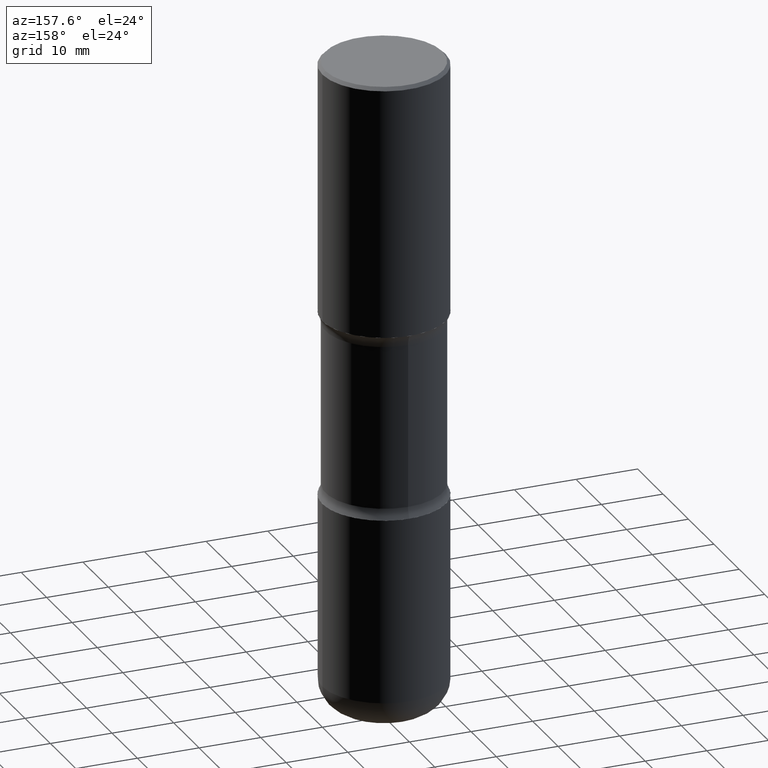
[diagram: clean part render]
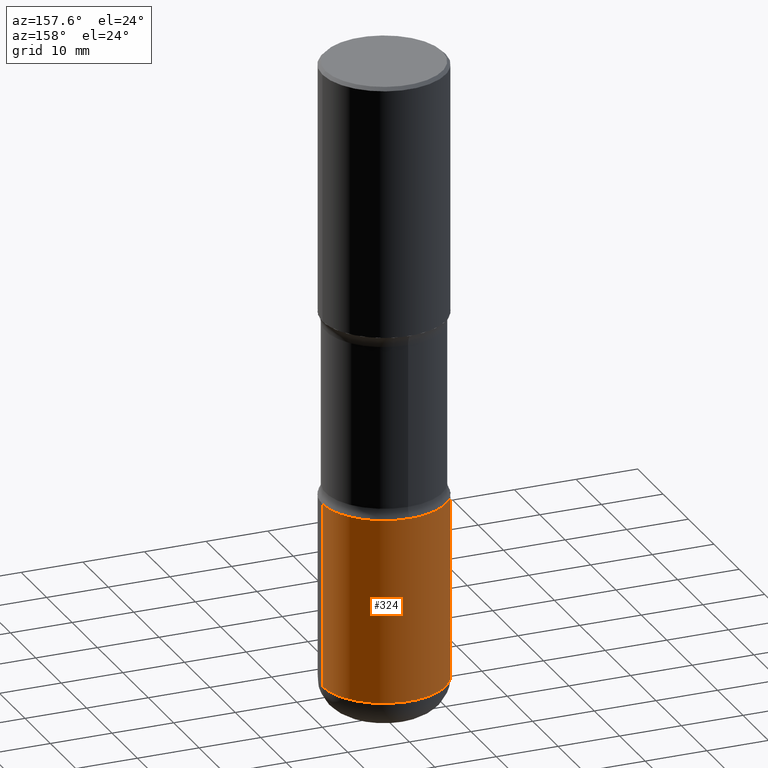
[diagram: same view with one face highlighted and labeled with its STEP entity id]
A machine part, auxiliary view. The second image highlights one B-rep face of the part: STEP entity #324.
In plain terms, the highlighted cylindrical surface (partial cylindrical patch) has radius 10 mm, axis along (-0, 0, 1).
Its self-contained STEP definition (entity closure, byte-faithful):
#20 = EDGE_CURVE ( 'NONE', #401, #432, #361, .T. ) ;
#41 = CARTESIAN_POINT ( 'NONE',  ( 0.3937000000000004385, -2.749192406205086372E-15, 1.919750796630862133E-29 ) ) ;
#53 = DIRECTION ( 'NONE',  ( 1.000000000000000000, -6.982962677686266711E-15, 4.876176775795935793E-29 ) ) ;
#56 = AXIS2_PLACEMENT_3D ( 'NONE', #553, #332, #369 ) ;
#61 = CARTESIAN_POINT ( 'NONE',  ( 9.723917614033958359E-29, -1.388317724764199912E-14, -3.976299999999999724 ) ) ;
#83 = EDGE_CURVE ( 'NONE', #531, #432, #504, .T. ) ;
#92 = CIRCLE ( 'NONE', #173, 0.3937000000000006605 ) ;
#99 = FACE_OUTER_BOUND ( 'NONE', #156, .T. ) ;
#100 = ORIENTED_EDGE ( 'NONE', *, *, #370, .T. ) ;
#140 = LINE ( 'NONE', #41, #222 ) ;
#156 = EDGE_LOOP ( 'NONE', ( #100, #442, #420, #329 ) ) ;
#160 = CARTESIAN_POINT ( 'NONE',  ( 0.3937000000000007160, -1.663236965384708707E-14, -3.976299999999999724 ) ) ;
#173 = AXIS2_PLACEMENT_3D ( 'NONE', #61, #235, #395 ) ;
#188 = EDGE_CURVE ( 'NONE', #497, #401, #140, .T. ) ;
#203 = CARTESIAN_POINT ( 'NONE',  ( -0.3937000000000007160, -1.108577049695447881E-14, -3.976299999999999724 ) ) ;
#204 = DIRECTION ( 'NONE',  ( -2.445468806185136877E-29, 3.491481338843145188E-15, 1.000000000000000000 ) ) ;
#212 = CARTESIAN_POINT ( 'NONE',  ( -0.3937000000000002164, -9.023876192300660874E-15, -2.795200000000000351 ) ) ;
#222 = VECTOR ( 'NONE', #343, 39.37007874015748143 ) ;
#235 = DIRECTION ( 'NONE',  ( -2.445468806185136597E-29, 3.491481338843145583E-15, 1.000000000000000000 ) ) ;
#253 = CARTESIAN_POINT ( 'NONE',  ( -0.3937000000000004385, 2.797406750687517547E-15, -1.936584745033358417E-29 ) ) ;
#255 = VECTOR ( 'NONE', #204, 39.37007874015748143 ) ;
#269 = DIRECTION ( 'NONE',  ( -2.445468806185136597E-29, 3.491481338843145583E-15, 1.000000000000000000 ) ) ;
#272 = CARTESIAN_POINT ( 'NONE',  ( 0.000000000000000000, 0.000000000000000000, 0.000000000000000000 ) ) ;
#324 = ADVANCED_FACE ( 'NONE', ( #99 ), #400, .T. ) ;
#329 = ORIENTED_EDGE ( 'NONE', *, *, #188, .F. ) ;
#332 = DIRECTION ( 'NONE',  ( -2.445468806185136597E-29, 3.491481338843145583E-15, 1.000000000000000000 ) ) ;
#336 = AXIS2_PLACEMENT_3D ( 'NONE', #272, #269, #53 ) ;
#343 = DIRECTION ( 'NONE',  ( -2.445468806185136877E-29, 3.491481338843145188E-15, 1.000000000000000000 ) ) ;
#361 = CIRCLE ( 'NONE', #56, 0.3937000000000002164 ) ;
#369 = DIRECTION ( 'NONE',  ( 1.000000000000000000, -6.982962677686269866E-15, 0.000000000000000000 ) ) ;
#370 = EDGE_CURVE ( 'NONE', #497, #531, #92, .T. ) ;
#395 = DIRECTION ( 'NONE',  ( 1.000000000000000000, -6.982962677686266711E-15, 0.000000000000000000 ) ) ;
#396 = CARTESIAN_POINT ( 'NONE',  ( 0.3937000000000002164, -1.250858104453944804E-14, -2.795200000000000351 ) ) ;
#400 = CYLINDRICAL_SURFACE ( 'NONE', #336, 0.3937000000000004385 ) ;
#401 = VERTEX_POINT ( 'NONE', #396 ) ;
#420 = ORIENTED_EDGE ( 'NONE', *, *, #20, .F. ) ;
#432 = VERTEX_POINT ( 'NONE', #212 ) ;
#442 = ORIENTED_EDGE ( 'NONE', *, *, #83, .T. ) ;
#497 = VERTEX_POINT ( 'NONE', #160 ) ;
#504 = LINE ( 'NONE', #253, #255 ) ;
#531 = VERTEX_POINT ( 'NONE', #203 ) ;
#553 = CARTESIAN_POINT ( 'NONE',  ( 6.835574407048695164E-29, -9.759388638334361670E-15, -2.795200000000000351 ) ) ;